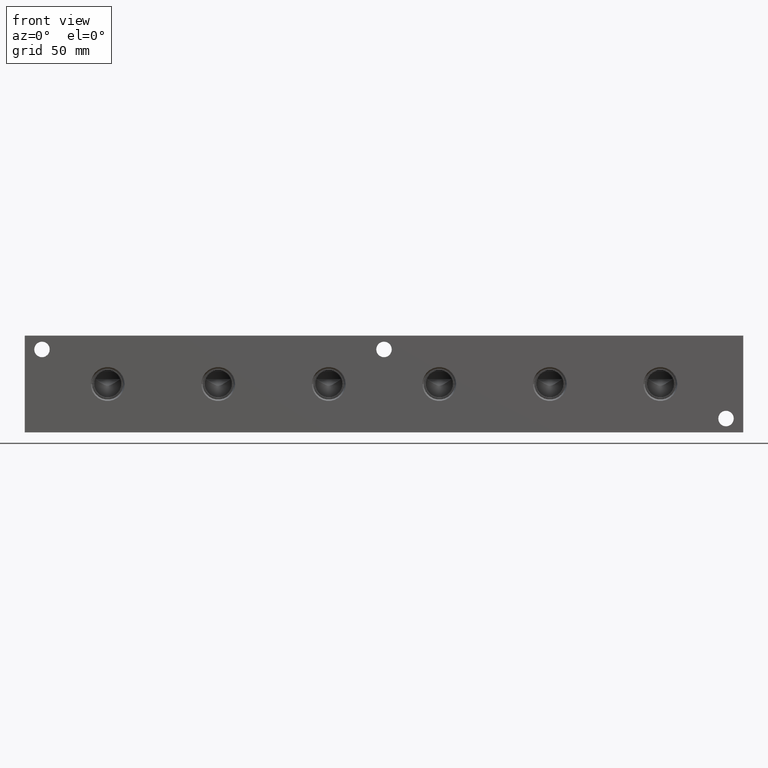
[diagram: clean part render]
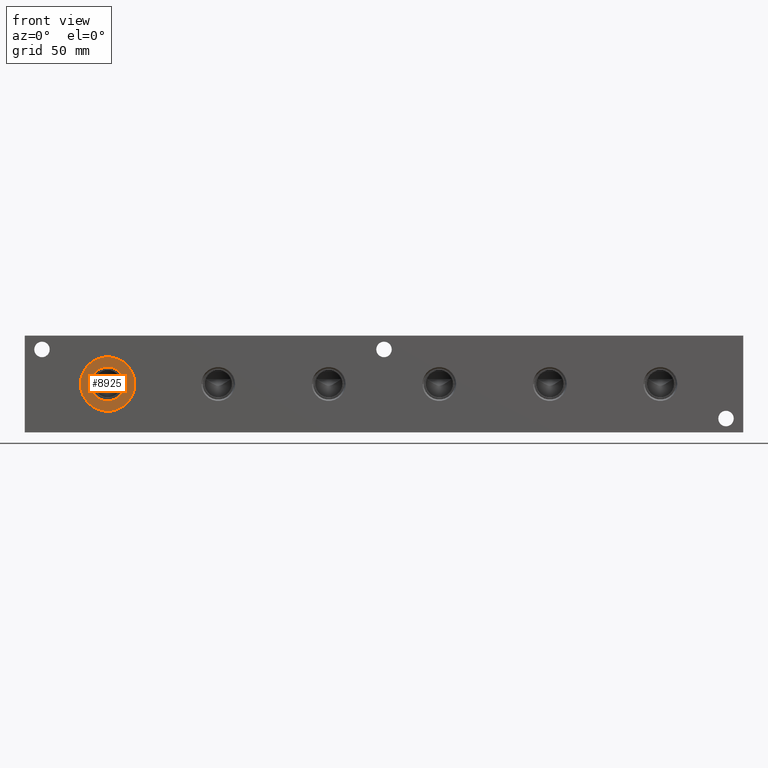
[diagram: same view with one face highlighted and labeled with its STEP entity id]
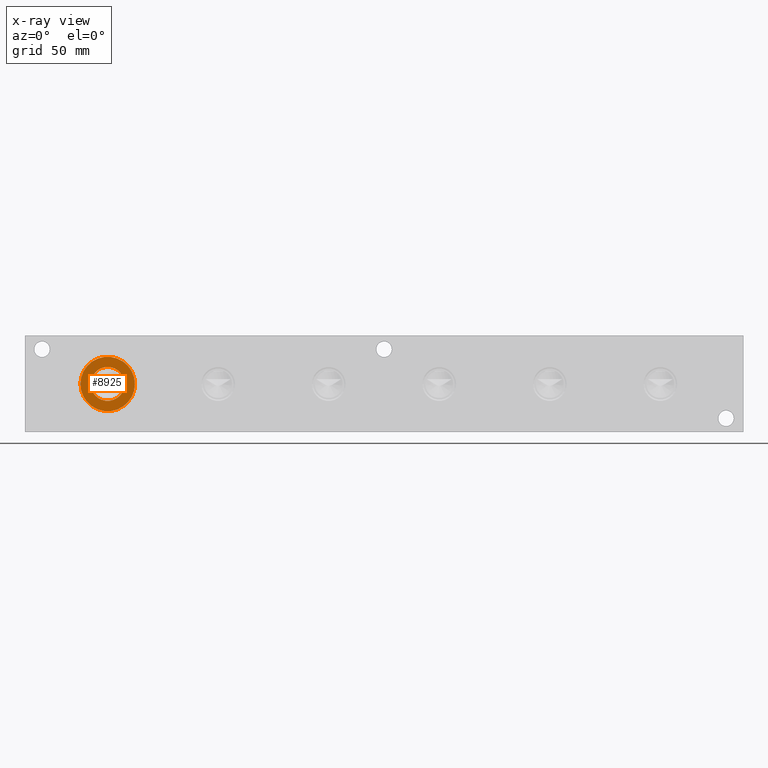
[diagram: x-ray of the same camera — body ghosted, the highlighted face saturated]
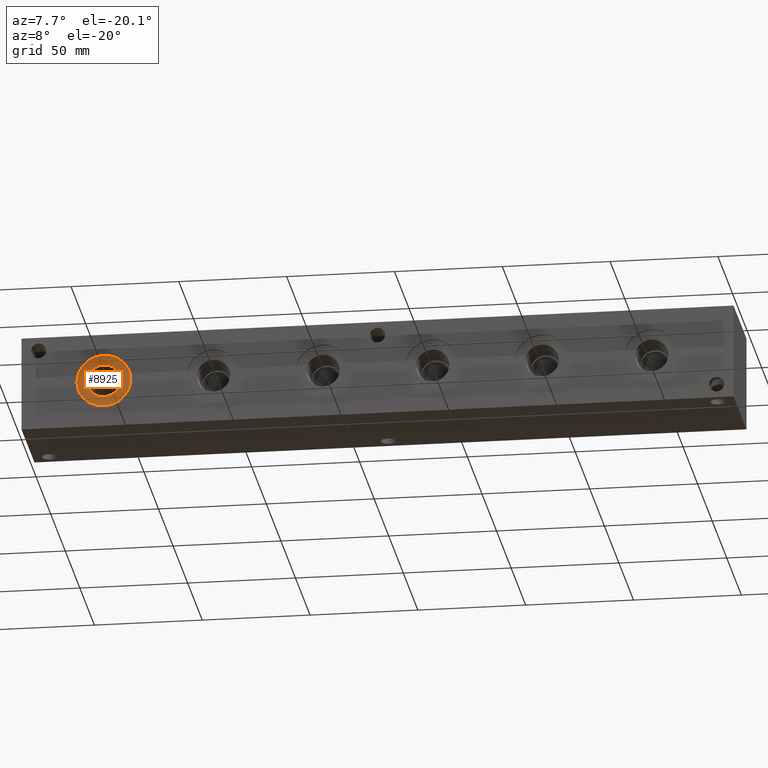
[diagram: same view with one face highlighted and labeled with its STEP entity id]
A machine part, front view. The second image highlights one B-rep face of the part: STEP entity #8925.
The next image is the same camera in x-ray: the body ghosted, the highlighted face saturated — about 0% of this face is hidden behind the body in this view.
A second angle (auxiliary view) of the same face is appended — the face is thin or edge-on in the first view.
In plain terms, the highlighted planar face has unit normal (0, 1, 0).
Its self-contained STEP definition (entity closure, byte-faithful):
#374=CIRCLE('',#9516,12.5095);
#375=CIRCLE('',#9517,12.5095);
#376=CIRCLE('',#9519,7.7978);
#377=CIRCLE('',#9520,7.7978);
#456=FACE_BOUND('',#1882,.T.);
#1351=FACE_OUTER_BOUND('',#1881,.T.);
#1881=EDGE_LOOP('',(#7820,#7821));
#1882=EDGE_LOOP('',(#7822,#7823));
#4139=VERTEX_POINT('',#15851);
#4140=VERTEX_POINT('',#15853);
#4141=VERTEX_POINT('',#15857);
#4142=VERTEX_POINT('',#15858);
#5383=EDGE_CURVE('',#4139,#4140,#374,.T.);
#5384=EDGE_CURVE('',#4140,#4139,#375,.T.);
#5385=EDGE_CURVE('',#4141,#4142,#376,.T.);
#5386=EDGE_CURVE('',#4142,#4141,#377,.T.);
#7820=ORIENTED_EDGE('',*,*,#5384,.F.);
#7821=ORIENTED_EDGE('',*,*,#5383,.F.);
#7822=ORIENTED_EDGE('',*,*,#5385,.T.);
#7823=ORIENTED_EDGE('',*,*,#5386,.T.);
#8154=PLANE('',#9518);
#8925=ADVANCED_FACE('',(#1351,#456),#8154,.F.);
#9516=AXIS2_PLACEMENT_3D('',#15854,#11358,#11359);
#9517=AXIS2_PLACEMENT_3D('',#15855,#11360,#11361);
#9518=AXIS2_PLACEMENT_3D('',#15856,#11362,#11363);
#9519=AXIS2_PLACEMENT_3D('',#15859,#11364,#11365);
#9520=AXIS2_PLACEMENT_3D('',#15860,#11366,#11367);
#11358=DIRECTION('center_axis',(0.,1.,0.));
#11359=DIRECTION('ref_axis',(1.,0.,0.));
#11360=DIRECTION('center_axis',(0.,1.,0.));
#11361=DIRECTION('ref_axis',(1.,0.,0.));
#11362=DIRECTION('center_axis',(0.,1.,0.));
#11363=DIRECTION('ref_axis',(0.,0.,1.));
#11364=DIRECTION('center_axis',(0.,1.,0.));
#11365=DIRECTION('ref_axis',(1.,0.,0.));
#11366=DIRECTION('center_axis',(0.,1.,0.));
#11367=DIRECTION('ref_axis',(1.,0.,0.));
#15851=CARTESIAN_POINT('',(25.5905,0.7874,22.225));
#15853=CARTESIAN_POINT('',(50.6095,0.7874,22.225));
#15854=CARTESIAN_POINT('Origin',(38.1,0.7874,22.225));
#15855=CARTESIAN_POINT('Origin',(38.1,0.7874,22.225));
#15856=CARTESIAN_POINT('Origin',(45.8978,0.7874,22.225));
#15857=CARTESIAN_POINT('',(45.8978,0.7874,22.225));
#15858=CARTESIAN_POINT('',(30.3022,0.787399999999999,22.225));
#15859=CARTESIAN_POINT('Origin',(38.1,0.7874,22.225));
#15860=CARTESIAN_POINT('Origin',(38.1,0.7874,22.225));